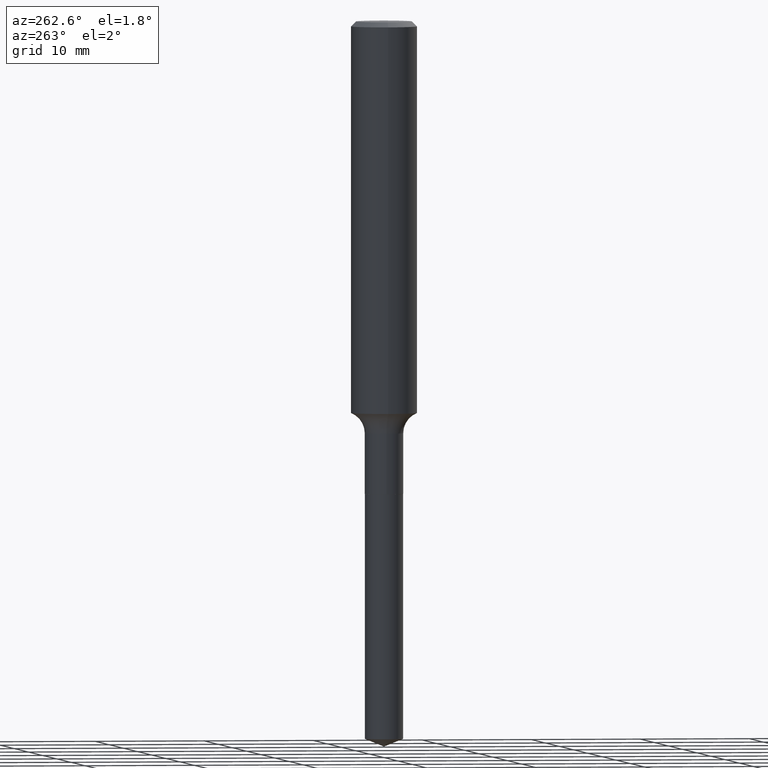
[diagram: clean part render]
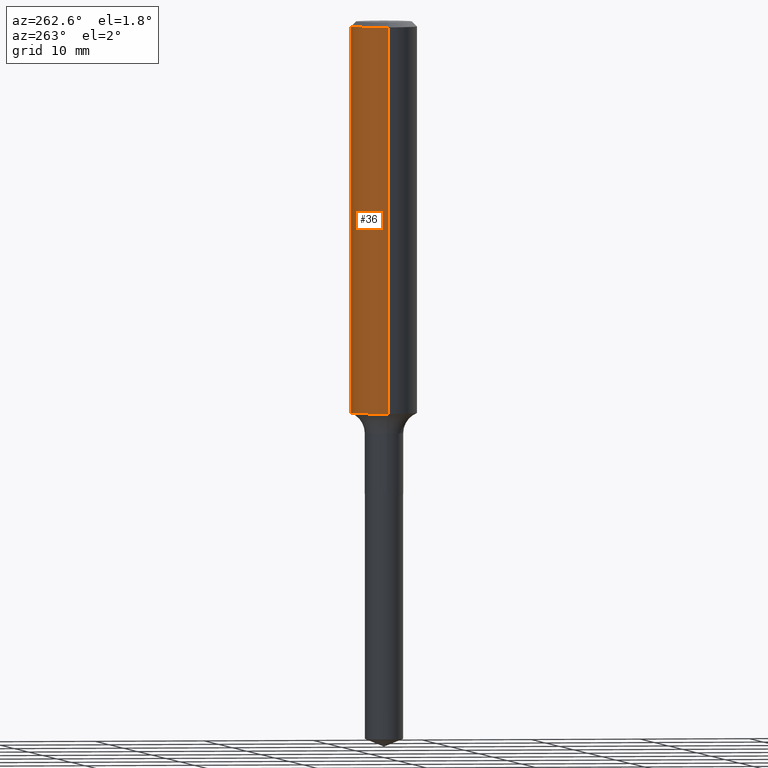
[diagram: same view with one face highlighted and labeled with its STEP entity id]
A machine part, auxiliary view. The second image highlights one B-rep face of the part: STEP entity #36.
In plain terms, the highlighted cylindrical surface (edge-blend (fillet) strip) has radius 2.9997 mm, axis along (-0, 0, 1).
Its self-contained STEP definition (entity closure, byte-faithful):
#4 = CARTESIAN_POINT ( 'NONE',  ( 0.1181000000000000799, -8.246878922347486570E-16, 5.758764772215004644E-30 ) ) ;
#19 = VECTOR ( 'NONE', #41, 39.37007874015748143 ) ;
#36 = ADVANCED_FACE ( 'NONE', ( #259 ), #368, .T. ) ;
#41 = DIRECTION ( 'NONE',  ( -2.445468806185136877E-29, 3.491481338843145188E-15, 1.000000000000000000 ) ) ;
#49 = DIRECTION ( 'NONE',  ( -2.445468806185136597E-29, 3.491481338843145583E-15, 1.000000000000000000 ) ) ;
#72 = DIRECTION ( 'NONE',  ( -2.445468806185136597E-29, 3.491481338843145583E-15, 1.000000000000000000 ) ) ;
#76 = DIRECTION ( 'NONE',  ( -2.445468806185136877E-29, 3.491481338843145188E-15, 1.000000000000000000 ) ) ;
#101 = CARTESIAN_POINT ( 'NONE',  ( -0.1181000000000002603, -4.058739748284982673E-15, -1.402811656109412830 ) ) ;
#108 = CARTESIAN_POINT ( 'NONE',  ( 4.332147990156998495E-31, -6.185159191760674092E-17, -0.01771500000000011954 ) ) ;
#134 = VERTEX_POINT ( 'NONE', #180 ) ;
#139 = CIRCLE ( 'NONE', #255, 0.1181000000000001632 ) ;
#166 = DIRECTION ( 'NONE',  ( 1.000000000000000000, -6.982962677686270655E-15, 0.000000000000000000 ) ) ;
#174 = EDGE_CURVE ( 'NONE', #210, #134, #428, .T. ) ;
#175 = VERTEX_POINT ( 'NONE', #101 ) ;
#180 = CARTESIAN_POINT ( 'NONE',  ( -0.1180999999999999966, -1.640720184634955534E-15, -0.01771500000000011954 ) ) ;
#192 = ORIENTED_EDGE ( 'NONE', *, *, #213, .F. ) ;
#201 = EDGE_CURVE ( 'NONE', #175, #134, #303, .T. ) ;
#206 = ORIENTED_EDGE ( 'NONE', *, *, #174, .F. ) ;
#210 = VERTEX_POINT ( 'NONE', #456 ) ;
#213 = EDGE_CURVE ( 'NONE', #266, #210, #379, .T. ) ;
#255 = AXIS2_PLACEMENT_3D ( 'NONE', #389, #49, #166 ) ;
#257 = DIRECTION ( 'NONE',  ( 1.000000000000000000, -6.982962677686266711E-15, 4.876176775795936353E-29 ) ) ;
#259 = FACE_OUTER_BOUND ( 'NONE', #421, .T. ) ;
#261 = VECTOR ( 'NONE', #76, 39.37007874015748143 ) ;
#266 = VERTEX_POINT ( 'NONE', #380 ) ;
#292 = DIRECTION ( 'NONE',  ( 1.000000000000000000, -6.982962677686266711E-15, 0.000000000000000000 ) ) ;
#303 = LINE ( 'NONE', #308, #261 ) ;
#308 = CARTESIAN_POINT ( 'NONE',  ( -0.1181000000000000799, 8.391509709326788873E-16, -5.809262341591047988E-30 ) ) ;
#368 = CYLINDRICAL_SURFACE ( 'NONE', #486, 0.1181000000000000799 ) ;
#379 = LINE ( 'NONE', #4, #19 ) ;
#380 = CARTESIAN_POINT ( 'NONE',  ( 0.1181000000000002603, -5.722578611452413077E-15, -1.402811656109412830 ) ) ;
#389 = CARTESIAN_POINT ( 'NONE',  ( 3.430532145968479544E-29, -4.897890719217663237E-15, -1.402811656109412830 ) ) ;
#407 = EDGE_CURVE ( 'NONE', #266, #175, #139, .T. ) ;
#415 = ORIENTED_EDGE ( 'NONE', *, *, #407, .T. ) ;
#421 = EDGE_LOOP ( 'NONE', ( #415, #472, #206, #192 ) ) ;
#428 = CIRCLE ( 'NONE', #462, 0.1180999999999999966 ) ;
#456 = CARTESIAN_POINT ( 'NONE',  ( 0.1180999999999999966, -8.865394841523548556E-16, -0.01771500000000011954 ) ) ;
#462 = AXIS2_PLACEMENT_3D ( 'NONE', #108, #72, #292 ) ;
#472 = ORIENTED_EDGE ( 'NONE', *, *, #201, .T. ) ;
#479 = CARTESIAN_POINT ( 'NONE',  ( 0.000000000000000000, 0.000000000000000000, 0.000000000000000000 ) ) ;
#485 = DIRECTION ( 'NONE',  ( -2.445468806185136597E-29, 3.491481338843145583E-15, 1.000000000000000000 ) ) ;
#486 = AXIS2_PLACEMENT_3D ( 'NONE', #479, #485, #257 ) ;